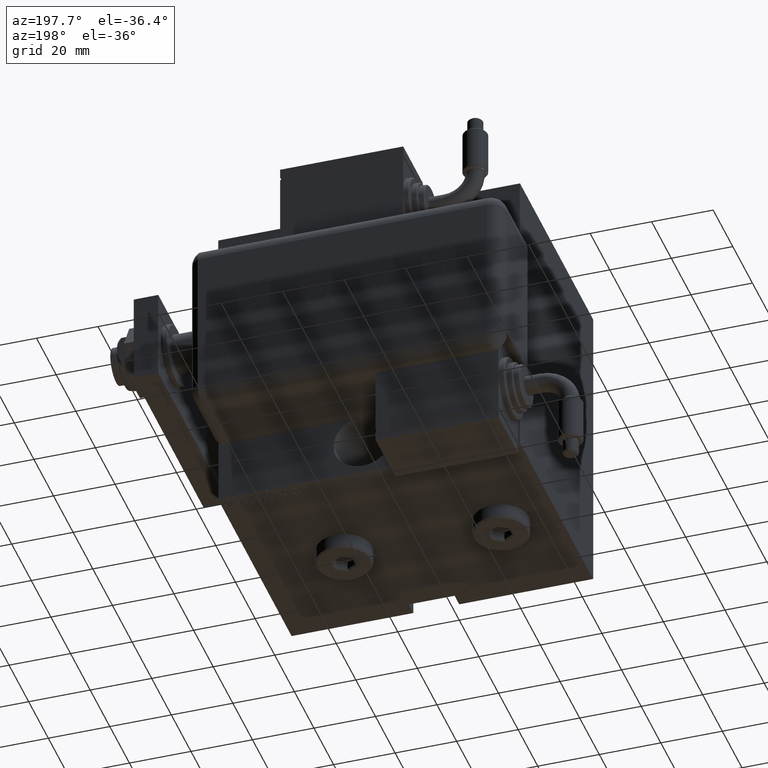
[diagram: clean part render]
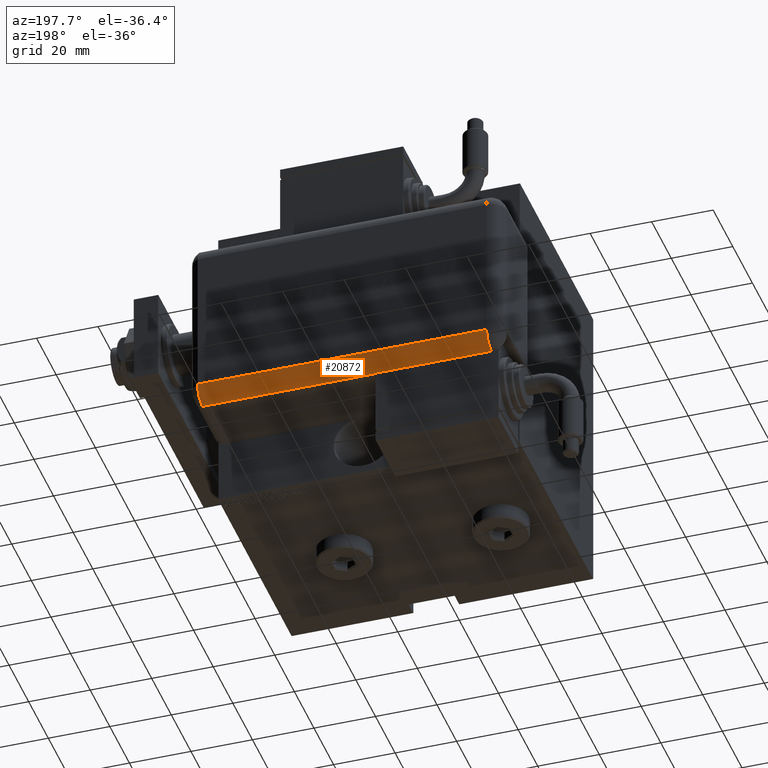
[diagram: same view with one face highlighted and labeled with its STEP entity id]
A machine part, auxiliary view. The second image highlights one B-rep face of the part: STEP entity #20872.
In plain terms, the highlighted cylindrical surface (edge-blend (fillet) strip) has radius 5 mm, axis along (-1, -0, -0).
Its self-contained STEP definition (entity closure, byte-faithful):
#207 = VERTEX_POINT ( 'NONE', #15883 ) ;
#2836 = FACE_OUTER_BOUND ( 'NONE', #22256, .T. ) ;
#2976 = CARTESIAN_POINT ( 'NONE',  ( 23.99999999999999289, 25.79999999999998295, 5.000000000000004441 ) ) ;
#3047 = EDGE_CURVE ( 'NONE', #39245, #57509, #34368, .T. ) ;
#4952 = EDGE_CURVE ( 'NONE', #57902, #57509, #49262, .T. ) ;
#5189 = CIRCLE ( 'NONE', #52785, 5.000000000000000888 ) ;
#6150 = DIRECTION ( 'NONE',  ( -0.000000000000000000, -0.000000000000000000, 1.000000000000000000 ) ) ;
#7482 = ORIENTED_EDGE ( 'NONE', *, *, #4952, .F. ) ;
#7665 = CARTESIAN_POINT ( 'NONE',  ( 28.99599839871871154, 20.99999999999999289, 43.00000000000000000 ) ) ;
#8834 = ORIENTED_EDGE ( 'NONE', *, *, #37477, .F. ) ;
#10074 = DIRECTION ( 'NONE',  ( -1.000000000000000000, 0.000000000000000000, 0.000000000000000000 ) ) ;
#12871 = VERTEX_POINT ( 'NONE', #7665 ) ;
#15883 = CARTESIAN_POINT ( 'NONE',  ( 28.99999999999999645, 20.79999999999998295, 43.00000000000000000 ) ) ;
#16368 = LINE ( 'NONE', #34706, #27375 ) ;
#17413 = DIRECTION ( 'NONE',  ( -1.000000000000000000, 0.000000000000000000, 0.000000000000000000 ) ) ;
#18196 = CARTESIAN_POINT ( 'NONE',  ( 28.99999999999999645, 20.79999999999998295, 99.00000000000000000 ) ) ;
#19490 = ORIENTED_EDGE ( 'NONE', *, *, #55346, .F. ) ;
#20638 = VECTOR ( 'NONE', #25709, 1000.000000000000000 ) ;
#20872 = ADVANCED_FACE ( 'NONE', ( #2836 ), #41323, .T. ) ;
#21039 = LINE ( 'NONE', #53958, #20638 ) ;
#22146 = DIRECTION ( 'NONE',  ( -0.000000000000000000, 0.000000000000000000, -1.000000000000000000 ) ) ;
#22256 = EDGE_LOOP ( 'NONE', ( #40199, #32060, #54367, #7482, #19490, #8834 ) ) ;
#24547 = EDGE_CURVE ( 'NONE', #12871, #207, #5189, .T. ) ;
#25046 = CIRCLE ( 'NONE', #37969, 5.000000000000000888 ) ;
#25709 = DIRECTION ( 'NONE',  ( -0.000000000000000000, -0.000000000000000000, 1.000000000000000000 ) ) ;
#25973 = VERTEX_POINT ( 'NONE', #18196 ) ;
#27375 = VECTOR ( 'NONE', #6150, 1000.000000000000000 ) ;
#31148 = CARTESIAN_POINT ( 'NONE',  ( 23.99999999999999289, 25.79999999999998295, 99.00000000000000000 ) ) ;
#32060 = ORIENTED_EDGE ( 'NONE', *, *, #47133, .F. ) ;
#34368 = CIRCLE ( 'NONE', #53200, 5.000000000000000888 ) ;
#34706 = CARTESIAN_POINT ( 'NONE',  ( 28.99999999999999645, 20.79999999999998295, 99.00000000000000000 ) ) ;
#35821 = DIRECTION ( 'NONE',  ( -0.000000000000000000, -0.000000000000000000, 1.000000000000000000 ) ) ;
#36974 = CARTESIAN_POINT ( 'NONE',  ( 23.99999999999999289, 20.79999999999998295, 99.00000000000000000 ) ) ;
#37477 = EDGE_CURVE ( 'NONE', #207, #25973, #16368, .T. ) ;
#37969 = AXIS2_PLACEMENT_3D ( 'NONE', #59377, #35821, #54735 ) ;
#39245 = VERTEX_POINT ( 'NONE', #61189 ) ;
#39944 = DIRECTION ( 'NONE',  ( 0.000000000000000000, 0.000000000000000000, -1.000000000000000000 ) ) ;
#40199 = ORIENTED_EDGE ( 'NONE', *, *, #24547, .F. ) ;
#41096 = DIRECTION ( 'NONE',  ( 1.000000000000000000, -6.383782391594648845E-14, 0.000000000000000000 ) ) ;
#41323 = CYLINDRICAL_SURFACE ( 'NONE', #56632, 5.000000000000000888 ) ;
#44292 = CARTESIAN_POINT ( 'NONE',  ( 23.99999999999999289, 25.79999999999998295, 99.00000000000000000 ) ) ;
#45124 = CARTESIAN_POINT ( 'NONE',  ( 23.99999999999999289, 20.79999999999998295, 43.00000000000000000 ) ) ;
#47133 = EDGE_CURVE ( 'NONE', #39245, #12871, #21039, .T. ) ;
#49262 = LINE ( 'NONE', #44292, #50294 ) ;
#50294 = VECTOR ( 'NONE', #39944, 1000.000000000000000 ) ;
#52785 = AXIS2_PLACEMENT_3D ( 'NONE', #45124, #22146, #41096 ) ;
#53200 = AXIS2_PLACEMENT_3D ( 'NONE', #57269, #53233, #10074 ) ;
#53233 = DIRECTION ( 'NONE',  ( -0.000000000000000000, -0.000000000000000000, 1.000000000000000000 ) ) ;
#53958 = CARTESIAN_POINT ( 'NONE',  ( 28.99599839871871154, 20.99999999999998224, 99.00000000000000000 ) ) ;
#54367 = ORIENTED_EDGE ( 'NONE', *, *, #3047, .T. ) ;
#54735 = DIRECTION ( 'NONE',  ( -1.000000000000000000, 0.000000000000000000, 0.000000000000000000 ) ) ;
#55346 = EDGE_CURVE ( 'NONE', #25973, #57902, #25046, .T. ) ;
#56632 = AXIS2_PLACEMENT_3D ( 'NONE', #36974, #60228, #17413 ) ;
#57269 = CARTESIAN_POINT ( 'NONE',  ( 23.99999999999999289, 20.79999999999998295, 5.000000000000004441 ) ) ;
#57509 = VERTEX_POINT ( 'NONE', #2976 ) ;
#57902 = VERTEX_POINT ( 'NONE', #31148 ) ;
#59377 = CARTESIAN_POINT ( 'NONE',  ( 23.99999999999999289, 20.79999999999998295, 99.00000000000000000 ) ) ;
#60228 = DIRECTION ( 'NONE',  ( 0.000000000000000000, 0.000000000000000000, -1.000000000000000000 ) ) ;
#61189 = CARTESIAN_POINT ( 'NONE',  ( 28.99599839871871154, 21.00000000000000000, 5.000000000000004441 ) ) ;